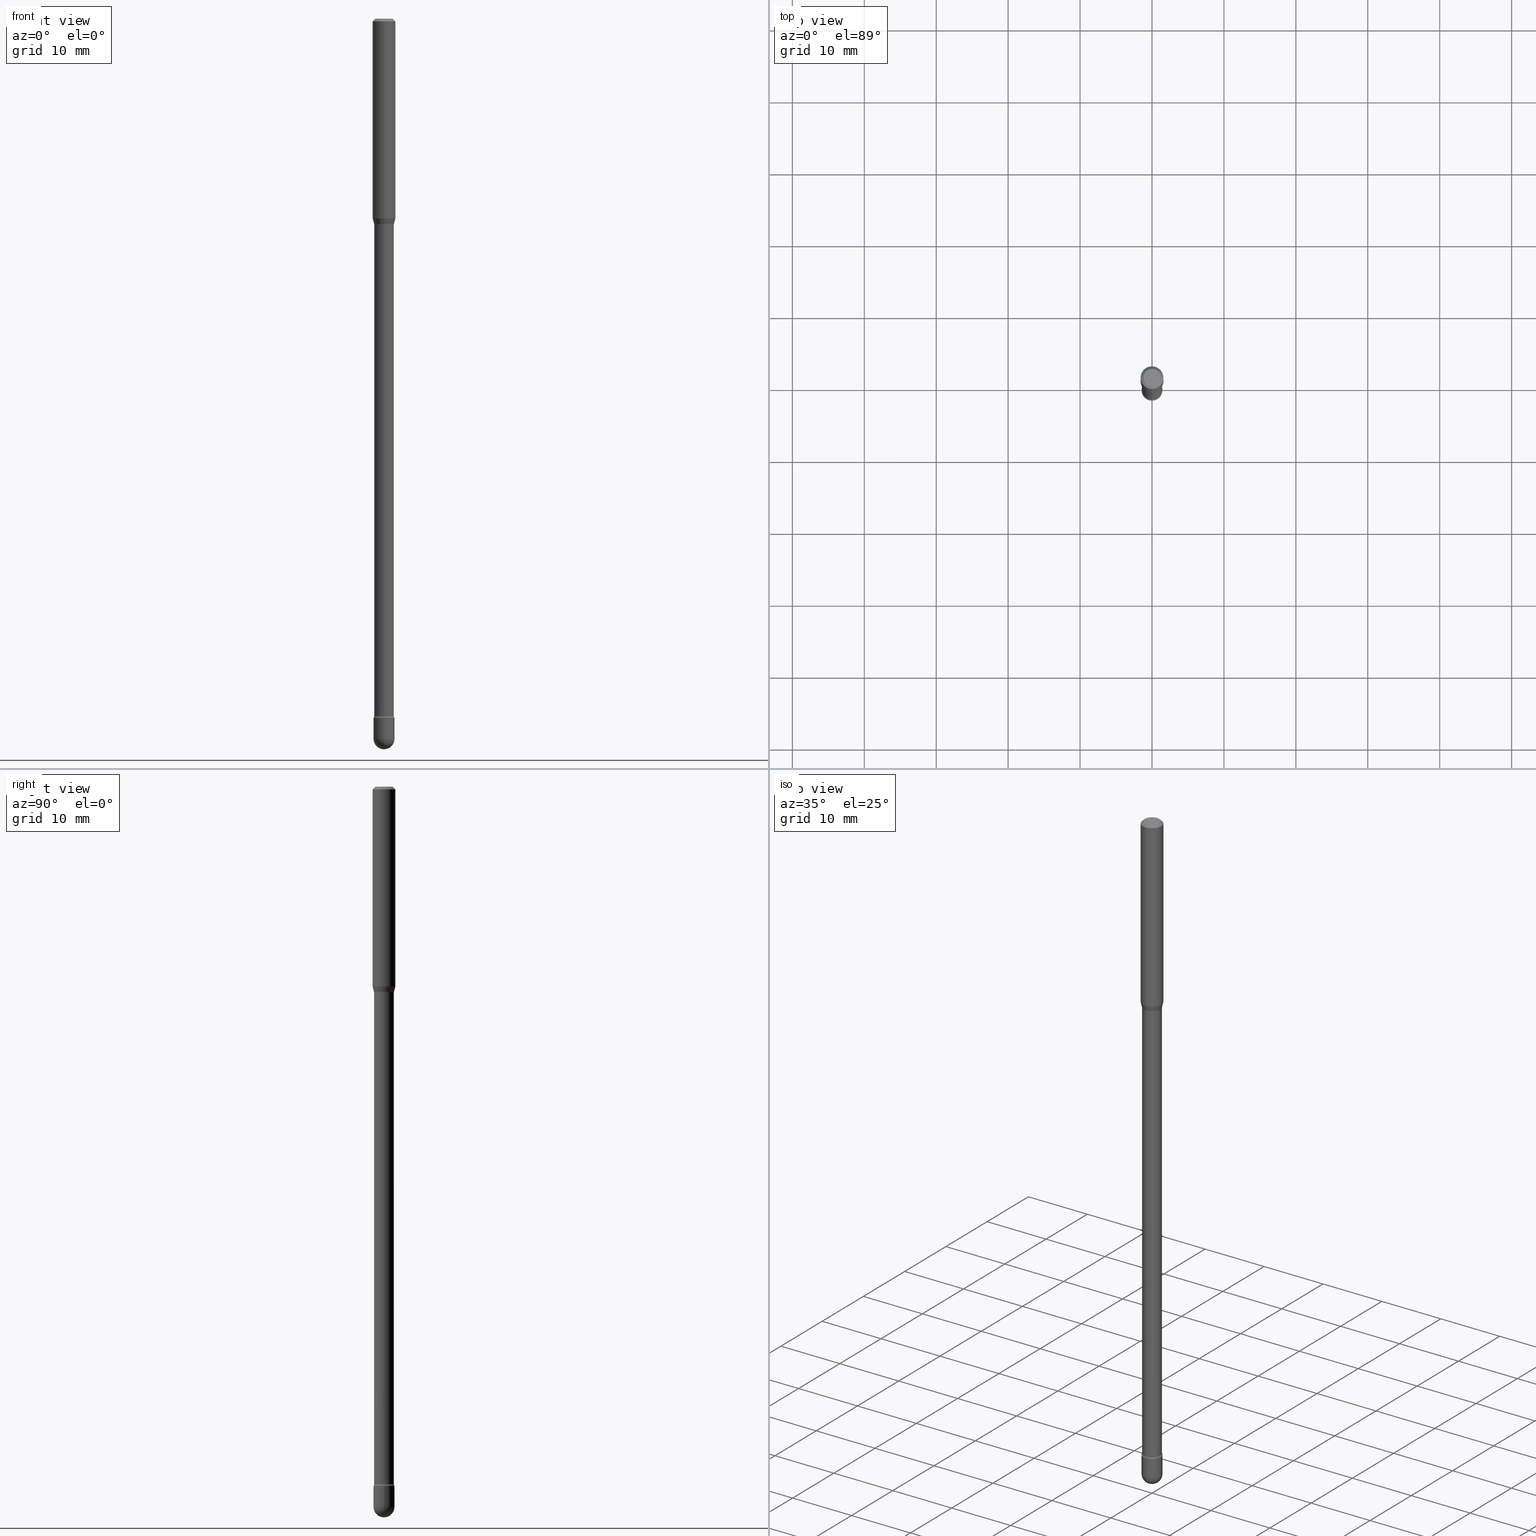
[diagram: canonical four-view strip — front | top / right | iso, engineering-drawing reading convention]
A machine part, canonical four-view strip (front | top / right | iso — engineering-drawing reading convention). The complete STEP part file that produces these views, byte-faithful:
ISO-10303-21;
HEADER;
FILE_DESCRIPTION (( 'STEP AP203' ),
    '1' );
FILE_NAME ('03992.STEP',
    '2024-04-09T21:43:25',
    ( '' ),
    ( '' ),
    'SwSTEP 2.0',
    'SolidWorks 2023',
    '' );
FILE_SCHEMA (( 'CONFIG_CONTROL_DESIGN' ));
ENDSEC;

DATA;
#1 = COORDINATED_UNIVERSAL_TIME_OFFSET ( 5, 0, .BEHIND. ) ;
#2 = CARTESIAN_POINT ( 'NONE',  ( -1.169113584055446105E-44, 1.669184350826100908E-30, 4.780733988912460139E-16 ) ) ;
#3 = CALENDAR_DATE ( 2024, 9, 4 ) ;
#4 = VERTEX_POINT ( 'NONE', #327 ) ;
#5 = DIRECTION ( 'NONE',  ( -2.445471990974716731E-29, 3.491476778043199636E-15, 1.000000000000000000 ) ) ;
#6 = ADVANCED_FACE ( 'NONE', ( #402 ), #531, .T. ) ;
#7 = EDGE_LOOP ( 'NONE', ( #543, #189, #50, #102 ) ) ;
#8 = ORIENTED_EDGE ( 'NONE', *, *, #509, .F. ) ;
#9 = PRODUCT_DEFINITION_FORMATION_WITH_SPECIFIED_SOURCE ( 'ANY', '', #560, .NOT_KNOWN. ) ;
#10 = AXIS2_PLACEMENT_3D ( 'NONE', #525, #424, #82 ) ;
#11 = DIRECTION ( 'NONE',  ( -2.445471990974716731E-29, 3.491476778043199636E-15, 1.000000000000000000 ) ) ;
#12 = CARTESIAN_POINT ( 'NONE',  ( -1.169113584055446105E-44, 1.669184350826100908E-30, 4.780733988912460139E-16 ) ) ;
#13 = VERTEX_POINT ( 'NONE', #51 ) ;
#14 = DATE_AND_TIME ( #3, #68 ) ;
#15 = CARTESIAN_POINT ( 'NONE',  ( 4.085620730621515977E-16, 0.05749999999998670064, -3.826999999999999957 ) ) ;
#16 = APPROVAL ( #116, 'UNSPECIFIED' ) ;
#17 = DIRECTION ( 'NONE',  ( -2.445471990974716731E-29, 3.491476778043199636E-15, 1.000000000000000000 ) ) ;
#18 = FACE_OUTER_BOUND ( 'NONE', #87, .T. ) ;
#19 = DIRECTION ( 'NONE',  ( -2.445471990974716731E-29, 3.491476778043199636E-15, 1.000000000000000000 ) ) ;
#20 = AXIS2_PLACEMENT_3D ( 'NONE', #207, #480, #381 ) ;
#21 = ORIENTED_EDGE ( 'NONE', *, *, #524, .T. ) ;
#22 = CARTESIAN_POINT ( 'NONE',  ( 0.000000000000000000, 0.000000000000000000, 0.000000000000000000 ) ) ;
#23 = CARTESIAN_POINT ( 'NONE',  ( 2.755981688099874044E-29, -3.934811439776616159E-15, -1.126974787463810967 ) ) ;
#24 = CARTESIAN_POINT ( 'NONE',  ( 3.668207986462094994E-31, -5.237215167064828371E-17, -0.01500000000000008271 ) ) ;
#25 = EDGE_CURVE ( 'NONE', #33, #4, #230, .T. ) ;
#26 = DATE_AND_TIME ( #328, #152 ) ;
#27 = AXIS2_PLACEMENT_3D ( 'NONE', #325, #508, #515 ) ;
#28 = AXIS2_PLACEMENT_3D ( 'NONE', #99, #449, #281 ) ;
#29 = CIRCLE ( 'NONE', #346, 0.06250000000000000000 ) ;
#30 = CIRCLE ( 'NONE', #555, 0.05405000000000025062 ) ;
#31 = VECTOR ( 'NONE', #115, 39.37007874015748143 ) ;
#32 = LINE ( 'NONE', #373, #369 ) ;
#33 = VERTEX_POINT ( 'NONE', #455 ) ;
#34 = DIRECTION ( 'NONE',  ( -6.982962677686265922E-15, -1.000000000000000000, 3.491476778043199636E-15 ) ) ;
#35 = CIRCLE ( 'NONE', #511, 0.01499999999999999424 ) ;
#36 = AXIS2_PLACEMENT_3D ( 'NONE', #317, #49, #235 ) ;
#37 = CIRCLE ( 'NONE', #433, 0.06250000000000000000 ) ;
#38 = FACE_OUTER_BOUND ( 'NONE', #523, .T. ) ;
#39 = ORIENTED_EDGE ( 'NONE', *, *, #535, .T. ) ;
#40 = DIRECTION ( 'NONE',  ( -2.445471990974716731E-29, 3.491476778043199636E-15, 1.000000000000000000 ) ) ;
#41 = EDGE_LOOP ( 'NONE', ( #399, #437, #401, #279 ) ) ;
#42 = ORIENTED_EDGE ( 'NONE', *, *, #355, .F. ) ;
#43 = CARTESIAN_POINT ( 'NONE',  ( 9.358821309460242183E-29, -1.336188162957132648E-14, -3.826999999999999957 ) ) ;
#44 = DIRECTION ( 'NONE',  ( -6.982962677686265922E-15, -1.000000000000000000, 0.000000000000000000 ) ) ;
#45 = CARTESIAN_POINT ( 'NONE',  ( 4.906297590423766918E-16, 0.06904999999999607285, -1.126974787463811412 ) ) ;
#46 = EDGE_CURVE ( 'NONE', #172, #216, #562, .T. ) ;
#47 = AXIS2_PLACEMENT_3D ( 'NONE', #490, #234, #494 ) ;
#48 = COORDINATED_UNIVERSAL_TIME_OFFSET ( 5, 0, .BEHIND. ) ;
#49 = DIRECTION ( 'NONE',  ( -2.445471990974716731E-29, 3.491476778043199636E-15, 1.000000000000000000 ) ) ;
#50 = ORIENTED_EDGE ( 'NONE', *, *, #273, .T. ) ;
#51 = CARTESIAN_POINT ( 'NONE',  ( 3.963052108702903812E-16, 0.05404999999998692101, -3.817429341715430358 ) ) ;
#52 = CARTESIAN_POINT ( 'NONE',  ( 3.668207986462094994E-31, -5.237215167064828371E-17, -0.01500000000000008271 ) ) ;
#53 = CARTESIAN_POINT ( 'NONE',  ( 9.641260768384900001E-29, -1.376516517838909916E-14, -3.942499999999999893 ) ) ;
#54 = DIRECTION ( 'NONE',  ( -2.445471990974716450E-29, 3.491476778043199636E-15, 1.000000000000000000 ) ) ;
#55 = AXIS2_PLACEMENT_3D ( 'NONE', #465, #204, #412 ) ;
#56 = DIRECTION ( 'NONE',  ( 0.000000000000000000, 0.000000000000000000, 1.000000000000000000 ) ) ;
#57 = AXIS2_PLACEMENT_3D ( 'NONE', #353, #357, #148 ) ;
#58 = AXIS2_PLACEMENT_3D ( 'NONE', #550, #162, #462 ) ;
#59 = CARTESIAN_POINT ( 'NONE',  ( 9.335416532690136069E-29, -1.332846589842016420E-14, -3.817429341715430358 ) ) ;
#60 = MECHANICAL_CONTEXT ( 'NONE', #496, 'mechanical' ) ;
#61 = DIRECTION ( 'NONE',  ( -6.982962677686265922E-15, -1.000000000000000000, 0.000000000000000000 ) ) ;
#62 = DIRECTION ( 'NONE',  ( 1.000000000000000000, -6.982962677686273810E-15, 0.000000000000000000 ) ) ;
#63 = AXIS2_PLACEMENT_3D ( 'NONE', #481, #227, #34 ) ;
#64 = ADVANCED_FACE ( 'NONE', ( #190 ), #285, .F. ) ;
#65 = CIRCLE ( 'NONE', #297, 0.05750000000000000250 ) ;
#66 = CARTESIAN_POINT ( 'NONE',  ( 0.000000000000000000, 0.000000000000000000, 0.000000000000000000 ) ) ;
#67 = CIRCLE ( 'NONE', #145, 0.06250000000000000000 ) ;
#68 = LOCAL_TIME ( 17, 43, 25.00000000000000000, #48 ) ;
#69 = APPLICATION_PROTOCOL_DEFINITION ( 'international standard', 'config_control_design', 1994, #414 ) ;
#70 = EDGE_LOOP ( 'NONE', ( #169, #258, #83, #519 ) ) ;
#71 = LINE ( 'NONE', #315, #461 ) ;
#72 = DIRECTION ( 'NONE',  ( -2.445471990974716450E-29, 3.491476778043199636E-15, 1.000000000000000000 ) ) ;
#73 = EDGE_LOOP ( 'NONE', ( #324, #443, #356, #426 ) ) ;
#74 = LINE ( 'NONE', #471, #330 ) ;
#75 = ORIENTED_EDGE ( 'NONE', *, *, #505, .F. ) ;
#76 = ADVANCED_FACE ( 'NONE', ( #18 ), #338, .F. ) ;
#77 = CARTESIAN_POINT ( 'NONE',  ( -3.774291327289152172E-16, -0.05405000000000394211, -1.126974787463810745 ) ) ;
#78 = ORIENTED_EDGE ( 'NONE', *, *, #109, .T. ) ;
#79 = ORIENTED_EDGE ( 'NONE', *, *, #505, .T. ) ;
#80 = CARTESIAN_POINT ( 'NONE',  ( 3.876800221694611832E-16, 0.05456111260566007259, -1.123092501787273489 ) ) ;
#81 = TOROIDAL_SURFACE ( 'NONE', #10, 0.06905000000000033333, 0.01500000000000008618 ) ;
#82 = DIRECTION ( 'NONE',  ( -6.982962677686265922E-15, -1.000000000000000000, 3.491476778043199242E-15 ) ) ;
#83 = ORIENTED_EDGE ( 'NONE', *, *, #464, .T. ) ;
#84 = ORIENTED_EDGE ( 'NONE', *, *, #509, .T. ) ;
#85 = CARTESIAN_POINT ( 'NONE',  ( 4.158846160097753596E-16, 0.05456111260566007259, -1.123092501787273489 ) ) ;
#86 = EDGE_CURVE ( 'NONE', #13, #128, #30, .T. ) ;
#87 = EDGE_LOOP ( 'NONE', ( #8, #135, #124, #500 ) ) ;
#88 = ORIENTED_EDGE ( 'NONE', *, *, #212, .F. ) ;
#89 = CYLINDRICAL_SURFACE ( 'NONE', #482, 0.05405000000000013266 ) ;
#90 = EDGE_LOOP ( 'NONE', ( #78, #343, #427, #254 ) ) ;
#91 = DIRECTION ( 'NONE',  ( 1.000000000000000000, -7.105427357601001070E-15, 4.926315452688391616E-29 ) ) ;
#92 = AXIS2_PLACEMENT_3D ( 'NONE', #129, #483, #251 ) ;
#93 = EDGE_LOOP ( 'NONE', ( #542, #302, #123, #522 ) ) ;
#94 = ORIENTED_EDGE ( 'NONE', *, *, #396, .F. ) ;
#95 = DIRECTION ( 'NONE',  ( 1.000000000000000000, -6.982962677686273810E-15, 0.000000000000000000 ) ) ;
#96 = CARTESIAN_POINT ( 'NONE',  ( 9.641260768384900001E-29, -1.376516517838909916E-14, -3.942499999999999893 ) ) ;
#97 = COORDINATED_UNIVERSAL_TIME_OFFSET ( 5, 0, .BEHIND. ) ;
#98 = DIRECTION ( 'NONE',  ( 2.445471990974716731E-29, -3.491476778043199636E-15, -1.000000000000000000 ) ) ;
#99 = CARTESIAN_POINT ( 'NONE',  ( 2.755985277277434029E-29, -3.934806299870066336E-15, -1.126974787463810967 ) ) ;
#100 = DIRECTION ( 'NONE',  ( -7.105427357601000281E-15, -1.000000000000000000, 0.000000000000000000 ) ) ;
#101 = DIRECTION ( 'NONE',  ( -2.445471990974716731E-29, 3.491476778043199636E-15, 1.000000000000000000 ) ) ;
#102 = ORIENTED_EDGE ( 'NONE', *, *, #404, .F. ) ;
#103 = CIRCLE ( 'NONE', #166, 0.05750000000000000250 ) ;
#104 = CLOSED_SHELL ( 'NONE', ( #409, #6, #64, #175, #192, #359, #154, #113, #335, #261, #429, #200, #371, #76 ) ) ;
#105 = CIRCLE ( 'NONE', #419, 0.05750000000000000250 ) ;
#106 = AXIS2_PLACEMENT_3D ( 'NONE', #121, #301, #311 ) ;
#107 = FACE_OUTER_BOUND ( 'NONE', #70, .T. ) ;
#108 = DIRECTION ( 'NONE',  ( 1.839019923739592427E-15, 0.2588190451025238481, 0.9659258262890675351 ) ) ;
#109 = EDGE_CURVE ( 'NONE', #128, #13, #205, .T. ) ;
#110 = DIRECTION ( 'NONE',  ( 1.000000000000000000, -6.982962677686265922E-15, 4.883557194083112340E-29 ) ) ;
#111 = CIRCLE ( 'NONE', #55, 0.06250000000000000000 ) ;
#112 = AXIS2_PLACEMENT_3D ( 'NONE', #336, #368, #516 ) ;
#113 = ADVANCED_FACE ( 'NONE', ( #138 ), #354, .T. ) ;
#114 = PERSON_AND_ORGANIZATION ( #472, #392 ) ;
#115 = DIRECTION ( 'NONE',  ( -2.445468806185136877E-29, 3.491481338843145188E-15, 1.000000000000000000 ) ) ;
#116 = APPROVAL_STATUS ( 'not_yet_approved' ) ;
#117 = EDGE_CURVE ( 'NONE', #128, #492, #539, .T. ) ;
#118 = DIRECTION ( 'NONE',  ( -2.445471990974716731E-29, 3.491476778043199636E-15, 1.000000000000000000 ) ) ;
#119 = DIRECTION ( 'NONE',  ( -6.982962677686265922E-15, -1.000000000000000000, 0.000000000000000000 ) ) ;
#120 = AXIS2_PLACEMENT_3D ( 'NONE', #250, #421, #377 ) ;
#121 = CARTESIAN_POINT ( 'NONE',  ( 9.358809121270517792E-29, -1.336189908375271843E-14, -3.826999999999999957 ) ) ;
#122 = CARTESIAN_POINT ( 'NONE',  ( 3.840483486784283759E-16, 0.05404999999999607341, -1.126974787463810967 ) ) ;
#123 = ORIENTED_EDGE ( 'NONE', *, *, #518, .T. ) ;
#124 = ORIENTED_EDGE ( 'NONE', *, *, #499, .T. ) ;
#125 = EDGE_CURVE ( 'NONE', #352, #165, #552, .T. ) ;
#126 = APPROVAL_ROLE ( '' ) ;
#127 = CARTESIAN_POINT ( 'NONE',  ( 2.674036002522660840E-29, -3.817804759537670479E-15, -1.093464170676043068 ) ) ;
#128 = VERTEX_POINT ( 'NONE', #347 ) ;
#129 = CARTESIAN_POINT ( 'NONE',  ( 9.641260768384900001E-29, -1.376516517838909916E-14, -3.942499999999999893 ) ) ;
#130 = AXIS2_PLACEMENT_3D ( 'NONE', #202, #292, #95 ) ;
#131 = VERTEX_POINT ( 'NONE', #209 ) ;
#132 = VECTOR ( 'NONE', #397, 39.37007874015748143 ) ;
#133 = LINE ( 'NONE', #312, #262 ) ;
#134 = EDGE_CURVE ( 'NONE', #303, #131, #37, .T. ) ;
#135 = ORIENTED_EDGE ( 'NONE', *, *, #318, .F. ) ;
#136 = DIRECTION ( 'NONE',  ( -2.445471990974716731E-29, 3.491476778043199636E-15, 1.000000000000000000 ) ) ;
#137 = EDGE_LOOP ( 'NONE', ( #321, #342 ) ) ;
#138 = FACE_OUTER_BOUND ( 'NONE', #474, .T. ) ;
#139 = ORIENTED_EDGE ( 'NONE', *, *, #415, .T. ) ;
#140 = CYLINDRICAL_SURFACE ( 'NONE', #309, 0.05750000000000000250 ) ;
#141 = DIRECTION ( 'NONE',  ( -1.000000000000000000, 6.982962677686265922E-15, -4.883557194083112340E-29 ) ) ;
#142 = CARTESIAN_POINT ( 'NONE',  ( 2.746491256394498454E-29, -3.921251389584705077E-15, -1.123092501787273267 ) ) ;
#143 = AXIS2_PLACEMENT_3D ( 'NONE', #96, #277, #100 ) ;
#144 = CARTESIAN_POINT ( 'NONE',  ( -3.809982129783618064E-16, -0.05456111260566790661, -1.123092501787273045 ) ) ;
#145 = AXIS2_PLACEMENT_3D ( 'NONE', #255, #5, #423 ) ;
#146 = LINE ( 'NONE', #80, #195 ) ;
#147 = FACE_OUTER_BOUND ( 'NONE', #238, .T. ) ;
#148 = DIRECTION ( 'NONE',  ( -6.982962677686266711E-15, -1.000000000000000000, 3.491476778043200031E-15 ) ) ;
#149 = EDGE_CURVE ( 'NONE', #13, #385, #393, .T. ) ;
#150 = CARTESIAN_POINT ( 'NONE',  ( 2.746491256394498454E-29, -3.921251389584705077E-15, -1.123092501787273267 ) ) ;
#151 = ORIENTED_EDGE ( 'NONE', *, *, #355, .T. ) ;
#152 = LOCAL_TIME ( 17, 43, 25.00000000000000000, #97 ) ;
#153 = VECTOR ( 'NONE', #450, 39.37007874015748143 ) ;
#154 = ADVANCED_FACE ( 'NONE', ( #387 ), #339, .T. ) ;
#155 = PERSON_AND_ORGANIZATION ( #472, #392 ) ;
#156 = CARTESIAN_POINT ( 'NONE',  ( 9.641260768384900001E-29, -1.376516517838909916E-14, -3.942499999999999893 ) ) ;
#157 =( CONVERSION_BASED_UNIT ( 'INCH', #289 ) LENGTH_UNIT ( ) NAMED_UNIT ( #407 ) );
#158 = CIRCLE ( 'NONE', #143, 0.05750000000000007189 ) ;
#159 = AXIS2_PLACEMENT_3D ( 'NONE', #24, #98, #362 ) ;
#160 = CARTESIAN_POINT ( 'NONE',  ( 4.015203539670569516E-16, 0.05749999999998627043, -3.942499999999999893 ) ) ;
#161 = CC_DESIGN_DATE_AND_TIME_ASSIGNMENT ( #14, #485, ( #286 ) ) ;
#162 = DIRECTION ( 'NONE',  ( -2.445471990974716731E-29, 3.491476778043199636E-15, 1.000000000000000000 ) ) ;
#163 = PERSON_AND_ORGANIZATION_ROLE ( 'classification_officer' ) ;
#164 = DIRECTION ( 'NONE',  ( 1.000000000000000000, -6.982962677686265922E-15, 4.876176775795935232E-29 ) ) ;
#165 = VERTEX_POINT ( 'NONE', #305 ) ;
#166 = AXIS2_PLACEMENT_3D ( 'NONE', #53, #400, #62 ) ;
#167 = CARTESIAN_POINT ( 'NONE',  ( 2.746491256394498454E-29, -3.921251389584705077E-15, -1.123092501787273267 ) ) ;
#168 = ADVANCED_FACE ( 'NONE', ( #38 ), #477, .T. ) ;
#169 = ORIENTED_EDGE ( 'NONE', *, *, #458, .F. ) ;
#170 = DATE_AND_TIME ( #184, #290 ) ;
#171 = PRODUCT_DEFINITION_SHAPE ( 'NONE', 'NONE',  #286 ) ;
#172 = VERTEX_POINT ( 'NONE', #77 ) ;
#173 = ORIENTED_EDGE ( 'NONE', *, *, #436, .F. ) ;
#174 = CARTESIAN_POINT ( 'NONE',  ( 9.358809121270517792E-29, -1.336189908375271843E-14, -3.826999999999999957 ) ) ;
#175 = ADVANCED_FACE ( 'NONE', ( #260 ), #512, .T. ) ;
#176 = DIRECTION ( 'NONE',  ( -1.000000000000000000, 6.982962677686266711E-15, -4.883557194083112901E-29 ) ) ;
#177 = APPROVAL_DATE_TIME ( #170, #548 ) ;
#178 = DIRECTION ( 'NONE',  ( -2.445471990974716731E-29, 3.491476778043199636E-15, 1.000000000000000000 ) ) ;
#179 = LOCAL_TIME ( 17, 43, 25.00000000000000000, #521 ) ;
#180 = AXIS2_PLACEMENT_3D ( 'NONE', #489, #439, #44 ) ;
#181 = VERTEX_POINT ( 'NONE', #220 ) ;
#182 = AXIS2_PLACEMENT_3D ( 'NONE', #536, #141, #276 ) ;
#183 = DIRECTION ( 'NONE',  ( -1.000000000000000000, 6.982962677686265922E-15, -4.883557194083112340E-29 ) ) ;
#184 = CALENDAR_DATE ( 2024, 9, 4 ) ;
#185 =( NAMED_UNIT ( * ) SI_UNIT ( $, .STERADIAN. ) SOLID_ANGLE_UNIT ( ) );
#186 = CC_DESIGN_PERSON_AND_ORGANIZATION_ASSIGNMENT ( #191, #413, ( #9 ) ) ;
#187 = DIRECTION ( 'NONE',  ( -6.982962677686265922E-15, -1.000000000000000000, 2.503475335454092652E-15 ) ) ;
#188 = ORIENTED_EDGE ( 'NONE', *, *, #499, .F. ) ;
#189 = ORIENTED_EDGE ( 'NONE', *, *, #86, .T. ) ;
#190 = FACE_OUTER_BOUND ( 'NONE', #41, .T. ) ;
#191 = PERSON_AND_ORGANIZATION ( #472, #392 ) ;
#192 = ADVANCED_FACE ( 'NONE', ( #337 ), #384, .T. ) ;
#193 = EDGE_LOOP ( 'NONE', ( #479, #84, #269, #188 ) ) ;
#194 = APPROVAL_PERSON_ORGANIZATION ( #408, #430, #546 ) ;
#195 = VECTOR ( 'NONE', #108, 39.37007874015748854 ) ;
#196 = DIRECTION ( 'NONE',  ( -2.445471990974716731E-29, 3.491476778043199636E-15, 1.000000000000000000 ) ) ;
#197 = DIRECTION ( 'NONE',  ( 1.000000000000000000, 0.000000000000000000, 0.000000000000000000 ) ) ;
#198 = EDGE_CURVE ( 'NONE', #385, #492, #105, .T. ) ;
#199 = CIRCLE ( 'NONE', #506, 0.05456111260566398613 ) ;
#200 = ADVANCED_FACE ( 'NONE', ( #307 ), #81, .F. ) ;
#201 = SECURITY_CLASSIFICATION_LEVEL ( 'unclassified' ) ;
#202 = CARTESIAN_POINT ( 'NONE',  ( 9.358809121270517792E-29, -1.336189908375271843E-14, -3.826999999999999957 ) ) ;
#203 = PLANE ( 'NONE',  #549 ) ;
#204 = DIRECTION ( 'NONE',  ( -2.445471990974716731E-29, 3.491476778043199636E-15, 1.000000000000000000 ) ) ;
#205 = CIRCLE ( 'NONE', #180, 0.05405000000000025062 ) ;
#206 = CIRCLE ( 'NONE', #106, 0.05750000000000000250 ) ;
#207 = CARTESIAN_POINT ( 'NONE',  ( 2.746491256394498454E-29, -3.921251389584705077E-15, -1.123092501787273267 ) ) ;
#208 =( LENGTH_UNIT ( ) NAMED_UNIT ( * ) SI_UNIT ( $, .METRE. ) );
#209 = CARTESIAN_POINT ( 'NONE',  ( 4.440892098500891416E-16, 0.06249999999999616279, -1.093464170676043512 ) ) ;
#210 = EDGE_LOOP ( 'NONE', ( #211, #349, #422, #561 ) ) ;
#211 = ORIENTED_EDGE ( 'NONE', *, *, #134, .T. ) ;
#212 = EDGE_CURVE ( 'NONE', #502, #181, #358, .T. ) ;
#213 = CARTESIAN_POINT ( 'NONE',  ( -4.821735728942091291E-16, -0.06905000000000394156, -1.126974787463810745 ) ) ;
#214 = APPROVAL_PERSON_ORGANIZATION ( #370, #16, #425 ) ;
#215 = AXIS2_PLACEMENT_3D ( 'NONE', #23, #136, #497 ) ;
#216 = VERTEX_POINT ( 'NONE', #122 ) ;
#217 = AXIS2_PLACEMENT_3D ( 'NONE', #174, #428, #267 ) ;
#218 = ORIENTED_EDGE ( 'NONE', *, *, #529, .F. ) ;
#219 = DIRECTION ( 'NONE',  ( 4.937700262164548042E-15, 0.7071067811865451302, -0.7071067811865499042 ) ) ;
#220 = CARTESIAN_POINT ( 'NONE',  ( -4.085620730619614329E-16, -0.05750000000001379702, -3.942499999999999893 ) ) ;
#221 = EDGE_CURVE ( 'NONE', #303, #306, #32, .T. ) ;
#222 = VERTEX_POINT ( 'NONE', #256 ) ;
#223 = DIRECTION ( 'NONE',  ( -4.851104656540964275E-15, -0.7071067811865500152, -0.7071067811865450192 ) ) ;
#224 = CARTESIAN_POINT ( 'NONE',  ( 3.668207986462094994E-31, -5.237215167064828371E-17, -0.01500000000000008271 ) ) ;
#225 = ORIENTED_EDGE ( 'NONE', *, *, #367, .F. ) ;
#226 = ORIENTED_EDGE ( 'NONE', *, *, #458, .T. ) ;
#227 = DIRECTION ( 'NONE',  ( -2.445471990974716450E-29, 3.491476778043199636E-15, 1.000000000000000000 ) ) ;
#228 = SPHERICAL_SURFACE ( 'NONE', #47, 0.05750000000000007189 ) ;
#229 = EDGE_CURVE ( 'NONE', #294, #131, #146, .T. ) ;
#230 = CIRCLE ( 'NONE', #57, 0.04749999999999999362 ) ;
#231 = DIRECTION ( 'NONE',  ( -2.445471990974716731E-29, 3.491476778043199636E-15, 1.000000000000000000 ) ) ;
#232 = CIRCLE ( 'NONE', #365, 0.05750000000000000250 ) ;
#233 = DIRECTION ( 'NONE',  ( 7.105427357601001859E-15, 1.000000000000000000, 0.000000000000000000 ) ) ;
#234 = DIRECTION ( 'NONE',  ( -1.000000000000000000, 6.982962677686266711E-15, -4.883557194083112901E-29 ) ) ;
#235 = DIRECTION ( 'NONE',  ( -6.982962677686265922E-15, -1.000000000000000000, 3.491476778043198453E-15 ) ) ;
#236 = ORIENTED_EDGE ( 'NONE', *, *, #25, .T. ) ;
#237 = CC_DESIGN_PERSON_AND_ORGANIZATION_ASSIGNMENT ( #114, #163, ( #240 ) ) ;
#238 = EDGE_LOOP ( 'NONE', ( #284, #484, #374, #340 ) ) ;
#239 = PERSON_AND_ORGANIZATION ( #472, #392 ) ;
#240 = SECURITY_CLASSIFICATION ( '', '', #201 ) ;
#241 = VERTEX_POINT ( 'NONE', #249 ) ;
#242 = CLOSED_SHELL ( 'NONE', ( #391, #296, #470, #265, #168 ) ) ;
#243 = VECTOR ( 'NONE', #54, 39.37007874015748143 ) ;
#244 = FACE_OUTER_BOUND ( 'NONE', #193, .T. ) ;
#245 = AXIS2_PLACEMENT_3D ( 'NONE', #213, #183, #350 ) ;
#246 = DIRECTION ( 'NONE',  ( 1.000000000000000000, -6.982962677686273810E-15, 0.000000000000000000 ) ) ;
#247 = AXIS2_PLACEMENT_3D ( 'NONE', #448, #110, #287 ) ;
#248 = PERSON_AND_ORGANIZATION_ROLE ( 'creator' ) ;
#249 = CARTESIAN_POINT ( 'NONE',  ( -3.809982129783618064E-16, -0.05456111260566790661, -1.123092501787273045 ) ) ;
#250 = CARTESIAN_POINT ( 'NONE',  ( 4.906297590424448296E-16, 0.06904999999998701066, -3.817429341715430358 ) ) ;
#251 = DIRECTION ( 'NONE',  ( 1.000000000000000000, -6.982962677686273810E-15, 0.000000000000000000 ) ) ;
#252 = ORIENTED_EDGE ( 'NONE', *, *, #415, .F. ) ;
#253 = DIRECTION ( 'NONE',  ( -6.982962677686265922E-15, -1.000000000000000000, 2.503475335454092652E-15 ) ) ;
#254 = ORIENTED_EDGE ( 'NONE', *, *, #273, .F. ) ;
#255 = CARTESIAN_POINT ( 'NONE',  ( 3.668207986462094994E-31, -5.237215167064828371E-17, -0.01500000000000008271 ) ) ;
#256 = CARTESIAN_POINT ( 'NONE',  ( -0.05750000000000000250, -1.315497005800885122E-14, -3.826999999999999957 ) ) ;
#257 = VERTEX_POINT ( 'NONE', #160 ) ;
#258 = ORIENTED_EDGE ( 'NONE', *, *, #25, .F. ) ;
#259 = APPLICATION_PROTOCOL_DEFINITION ( 'international standard', 'config_control_design', 1994, #496 ) ;
#260 = FACE_OUTER_BOUND ( 'NONE', #263, .T. ) ;
#261 = ADVANCED_FACE ( 'NONE', ( #416 ), #203, .F. ) ;
#262 = VECTOR ( 'NONE', #487, 39.37007874015748143 ) ;
#263 = EDGE_LOOP ( 'NONE', ( #466, #226, #530, #486 ) ) ;
#264 = FACE_OUTER_BOUND ( 'NONE', #493, .T. ) ;
#265 = ADVANCED_FACE ( 'NONE', ( #264 ), #533, .T. ) ;
#266 = UNCERTAINTY_MEASURE_WITH_UNIT (LENGTH_MEASURE( 1.000000000000000082E-05 ), #157, 'distance_accuracy_value', 'NONE');
#267 = DIRECTION ( 'NONE',  ( 1.000000000000000000, -6.982962677686265922E-15, 4.876176775795935793E-29 ) ) ;
#268 = FACE_OUTER_BOUND ( 'NONE', #534, .T. ) ;
#269 = ORIENTED_EDGE ( 'NONE', *, *, #404, .T. ) ;
#270 = DIRECTION ( 'NONE',  ( -6.982962677686265922E-15, -1.000000000000000000, 3.491476778043199242E-15 ) ) ;
#271 = DIRECTION ( 'NONE',  ( -6.982962677686265922E-15, -1.000000000000000000, 3.491476778043199242E-15 ) ) ;
#272 = LINE ( 'NONE', #144, #526 ) ;
#273 = EDGE_CURVE ( 'NONE', #128, #172, #133, .T. ) ;
#274 = DIRECTION ( 'NONE',  ( 1.000000000000000000, -6.982962677686265922E-15, 4.876176775795935232E-29 ) ) ;
#275 = MANIFOLD_SOLID_BREP ( 'Body-Move/Copy2[1]', #242 ) ;
#276 = DIRECTION ( 'NONE',  ( -6.982962677686267499E-15, -1.000000000000000000, 0.000000000000000000 ) ) ;
#277 = DIRECTION ( 'NONE',  ( -1.000000000000000000, 7.105427357601001070E-15, -4.926315508542082329E-29 ) ) ;
#278 = MANIFOLD_SOLID_BREP ( 'Body-Move/Copy2[2]', #104 ) ;
#279 = ORIENTED_EDGE ( 'NONE', *, *, #117, .F. ) ;
#280 = CARTESIAN_POINT ( 'NONE',  ( -0.05750000000000000250, 4.085620730620576246E-16, -2.828387676896570712E-30 ) ) ;
#281 = DIRECTION ( 'NONE',  ( -6.982962677686265922E-15, -1.000000000000000000, 2.527148930309216366E-15 ) ) ;
#282 = CARTESIAN_POINT ( 'NONE',  ( 4.440892098500893388E-16, 0.06249999999999993755, -0.01500000000000030129 ) ) ;
#283 = AXIS2_PLACEMENT_3D ( 'NONE', #383, #56, #197 ) ;
#284 = ORIENTED_EDGE ( 'NONE', *, *, #318, .T. ) ;
#285 = TOROIDAL_SURFACE ( 'NONE', #504, 0.06905000000000033333, 0.01500000000000008618 ) ;
#286 = PRODUCT_DEFINITION ( 'UNKNOWN', '', #9, #314 ) ;
#287 = DIRECTION ( 'NONE',  ( 6.982962677686265922E-15, 1.000000000000000000, 0.000000000000000000 ) ) ;
#288 = APPROVAL_STATUS ( 'not_yet_approved' ) ;
#289 = LENGTH_MEASURE_WITH_UNIT ( LENGTH_MEASURE( 0.02539999999999999897 ), #208 );
#290 = LOCAL_TIME ( 17, 43, 25.00000000000000000, #1 ) ;
#291 = CIRCLE ( 'NONE', #245, 0.01499999999999999424 ) ;
#292 = DIRECTION ( 'NONE',  ( -2.445468806185136597E-29, 3.491481338843145583E-15, 1.000000000000000000 ) ) ;
#293 = CC_DESIGN_DATE_AND_TIME_ASSIGNMENT ( #295, #435, ( #240 ) ) ;
#294 = VERTEX_POINT ( 'NONE', #85 ) ;
#295 = DATE_AND_TIME ( #417, #507 ) ;
#296 = ADVANCED_FACE ( 'NONE', ( #268 ), #228, .T. ) ;
#297 = AXIS2_PLACEMENT_3D ( 'NONE', #564, #476, #382 ) ;
#298 = AXIS2_PLACEMENT_3D ( 'NONE', #2, #178, #517 ) ;
#299 = CARTESIAN_POINT ( 'NONE',  ( 9.358821309460242183E-29, -1.336188162957132648E-14, -3.826999999999999957 ) ) ;
#300 = EDGE_CURVE ( 'NONE', #492, #385, #232, .T. ) ;
#301 = DIRECTION ( 'NONE',  ( -2.445468806185136597E-29, 3.491481338843145583E-15, 1.000000000000000000 ) ) ;
#302 = ORIENTED_EDGE ( 'NONE', *, *, #332, .T. ) ;
#303 = VERTEX_POINT ( 'NONE', #513 ) ;
#304 = FACE_OUTER_BOUND ( 'NONE', #137, .T. ) ;
#305 = CARTESIAN_POINT ( 'NONE',  ( 0.05750000000000000250, -1.376341943771968003E-14, -3.826999999999999957 ) ) ;
#306 = VERTEX_POINT ( 'NONE', #334 ) ;
#307 = FACE_OUTER_BOUND ( 'NONE', #73, .T. ) ;
#308 = AXIS2_PLACEMENT_3D ( 'NONE', #12, #17, #271 ) ;
#309 = AXIS2_PLACEMENT_3D ( 'NONE', #22, #329, #274 ) ;
#310 = ORIENTED_EDGE ( 'NONE', *, *, #198, .F. ) ;
#311 = DIRECTION ( 'NONE',  ( 1.000000000000000000, -6.982962677686273810E-15, 0.000000000000000000 ) ) ;
#312 = CARTESIAN_POINT ( 'NONE',  ( -3.774291327289436162E-16, -0.05405000000000013266, 6.667877187444814746E-16 ) ) ;
#313 = DIRECTION ( 'NONE',  ( -2.445471990974716731E-29, 3.491476778043199636E-15, 1.000000000000000000 ) ) ;
#314 = DESIGN_CONTEXT ( 'detailed design', #414, 'design' ) ;
#315 = CARTESIAN_POINT ( 'NONE',  ( 4.364351673553919652E-16, 0.06249999999999995143, -0.01500000000000030129 ) ) ;
#316 = CARTESIAN_POINT ( 'NONE',  ( -1.169113584055446105E-44, 1.669184350826100908E-30, 4.780733988912460139E-16 ) ) ;
#317 = CARTESIAN_POINT ( 'NONE',  ( -1.169113584055446105E-44, 1.669184350826100908E-30, 4.780733988912460139E-16 ) ) ;
#318 = EDGE_CURVE ( 'NONE', #241, #294, #442, .T. ) ;
#319 = ORIENTED_EDGE ( 'NONE', *, *, #125, .F. ) ;
#320 = LINE ( 'NONE', #445, #243 ) ;
#321 = ORIENTED_EDGE ( 'NONE', *, *, #537, .T. ) ;
#322 = AXIS2_PLACEMENT_3D ( 'NONE', #156, #510, #246 ) ;
#323 = EDGE_LOOP ( 'NONE', ( #236, #398 ) ) ;
#324 = ORIENTED_EDGE ( 'NONE', *, *, #149, .F. ) ;
#325 = CARTESIAN_POINT ( 'NONE',  ( 2.023576016125851639E-45, -2.889079169192022076E-31, -8.274724870954284047E-17 ) ) ;
#326 = FACE_OUTER_BOUND ( 'NONE', #7, .T. ) ;
#327 = CARTESIAN_POINT ( 'NONE',  ( -3.773273898774340269E-16, -0.04749999999999999362, 8.309789824750911808E-17 ) ) ;
#328 = CALENDAR_DATE ( 2024, 9, 4 ) ;
#329 = DIRECTION ( 'NONE',  ( -2.445468806185136597E-29, 3.491481338843145583E-15, 1.000000000000000000 ) ) ;
#330 = VECTOR ( 'NONE', #223, 39.37007874015748143 ) ;
#331 = DIRECTION ( 'NONE',  ( -2.445471990974716731E-29, 3.491476778043199636E-15, 1.000000000000000000 ) ) ;
#332 = EDGE_CURVE ( 'NONE', #294, #241, #199, .T. ) ;
#333 = DIRECTION ( 'NONE',  ( 2.445471990974716450E-29, -3.491476778043199636E-15, -1.000000000000000000 ) ) ;
#334 = CARTESIAN_POINT ( 'NONE',  ( -4.364351673553912750E-16, -0.06250000000000005551, -0.01499999999999986587 ) ) ;
#335 = ADVANCED_FACE ( 'NONE', ( #107 ), #411, .T. ) ;
#336 = CARTESIAN_POINT ( 'NONE',  ( 2.755981688099874044E-29, -3.934811439776616159E-15, -1.126974787463810967 ) ) ;
#337 = FACE_OUTER_BOUND ( 'NONE', #210, .T. ) ;
#338 = TOROIDAL_SURFACE ( 'NONE', #215, 0.06905000000000000027, 0.01499999999999998904 ) ;
#339 = CONICAL_SURFACE ( 'NONE', #420, 0.05456111260566398613, 0.2617993877991491303 ) ;
#340 = ORIENTED_EDGE ( 'NONE', *, *, #518, .F. ) ;
#341 = SHAPE_DEFINITION_REPRESENTATION ( #171, #366 ) ;
#342 = ORIENTED_EDGE ( 'NONE', *, *, #436, .T. ) ;
#343 = ORIENTED_EDGE ( 'NONE', *, *, #379, .T. ) ;
#344 = CC_DESIGN_PERSON_AND_ORGANIZATION_ASSIGNMENT ( #454, #405, ( #560 ) ) ;
#345 = DIRECTION ( 'NONE',  ( -2.445471990974716731E-29, 3.491476778043199636E-15, 1.000000000000000000 ) ) ;
#346 = AXIS2_PLACEMENT_3D ( 'NONE', #52, #19, #360 ) ;
#347 = CARTESIAN_POINT ( 'NONE',  ( -3.774291327288510236E-16, -0.05405000000001357330, -3.817429341715430358 ) ) ;
#348 = TOROIDAL_SURFACE ( 'NONE', #112, 0.06905000000000000027, 0.01499999999999998904 ) ;
#349 = ORIENTED_EDGE ( 'NONE', *, *, #367, .T. ) ;
#350 = DIRECTION ( 'NONE',  ( -6.982962677686266711E-15, -1.000000000000000000, 0.000000000000000000 ) ) ;
#351 = DIRECTION ( 'NONE',  ( 6.982962677686265922E-15, 1.000000000000000000, -3.491476778043199636E-15 ) ) ;
#352 = VERTEX_POINT ( 'NONE', #364 ) ;
#353 = CARTESIAN_POINT ( 'NONE',  ( 2.023576016125851639E-45, -2.889079169192022076E-31, -8.274724870954284047E-17 ) ) ;
#354 = CYLINDRICAL_SURFACE ( 'NONE', #36, 0.06250000000000000000 ) ;
#355 = EDGE_CURVE ( 'NONE', #502, #222, #541, .T. ) ;
#356 = ORIENTED_EDGE ( 'NONE', *, *, #117, .T. ) ;
#357 = DIRECTION ( 'NONE',  ( -2.445471990974716731E-29, 3.491476778043199636E-15, 1.000000000000000000 ) ) ;
#358 = CIRCLE ( 'NONE', #92, 0.05750000000000000250 ) ;
#359 = ADVANCED_FACE ( 'NONE', ( #147 ), #376, .T. ) ;
#360 = DIRECTION ( 'NONE',  ( -6.982962677686265922E-15, -1.000000000000000000, 3.483106191921935554E-15 ) ) ;
#361 = ORIENTED_EDGE ( 'NONE', *, *, #545, .F. ) ;
#362 = DIRECTION ( 'NONE',  ( 6.982962677686265922E-15, 1.000000000000000000, -3.483106191921935554E-15 ) ) ;
#363 = VERTEX_POINT ( 'NONE', #282 ) ;
#364 = CARTESIAN_POINT ( 'NONE',  ( 0.05750000000000000250, -1.396505248503787118E-14, -3.942499999999999893 ) ) ;
#365 = AXIS2_PLACEMENT_3D ( 'NONE', #43, #118, #61 ) ;
#366 = ADVANCED_BREP_SHAPE_REPRESENTATION ( '03992', ( #275, #278, #283 ), #460 ) ;
#367 = EDGE_CURVE ( 'NONE', #131, #363, #501, .T. ) ;
#368 = DIRECTION ( 'NONE',  ( -2.445471990974716731E-29, 3.491476778043199636E-15, 1.000000000000000000 ) ) ;
#369 = VECTOR ( 'NONE', #72, 39.37007874015748143 ) ;
#370 = PERSON_AND_ORGANIZATION ( #472, #392 ) ;
#371 = ADVANCED_FACE ( 'NONE', ( #326 ), #89, .T. ) ;
#372 = EDGE_LOOP ( 'NONE', ( #395, #310 ) ) ;
#373 = CARTESIAN_POINT ( 'NONE',  ( -4.364351673553916201E-16, -0.06250000000000000000, 6.962906975189459665E-16 ) ) ;
#374 = ORIENTED_EDGE ( 'NONE', *, *, #134, .F. ) ;
#375 = CIRCLE ( 'NONE', #130, 0.05750000000000000250 ) ;
#376 = CONICAL_SURFACE ( 'NONE', #403, 0.05456111260566398613, 0.2617993877991491303 ) ;
#377 = DIRECTION ( 'NONE',  ( 7.105427357600997914E-15, 1.000000000000000000, 0.000000000000000000 ) ) ;
#378 = ORIENTED_EDGE ( 'NONE', *, *, #125, .T. ) ;
#379 = EDGE_CURVE ( 'NONE', #13, #216, #320, .T. ) ;
#380 = CC_DESIGN_PERSON_AND_ORGANIZATION_ASSIGNMENT ( #239, #444, ( #286 ) ) ;
#381 = DIRECTION ( 'NONE',  ( -6.982962677686265922E-15, -1.000000000000000000, 2.503475335454092652E-15 ) ) ;
#382 = DIRECTION ( 'NONE',  ( 1.000000000000000000, -6.982962677686273810E-15, 0.000000000000000000 ) ) ;
#383 = CARTESIAN_POINT ( 'NONE',  ( 0.000000000000000000, 0.000000000000000000, 0.000000000000000000 ) ) ;
#384 = CYLINDRICAL_SURFACE ( 'NONE', #298, 0.06250000000000000000 ) ;
#385 = VERTEX_POINT ( 'NONE', #15 ) ;
#386 = PLANE ( 'NONE',  #217 ) ;
#387 = FACE_OUTER_BOUND ( 'NONE', #93, .T. ) ;
#388 = ORIENTED_EDGE ( 'NONE', *, *, #537, .F. ) ;
#389 = DIRECTION ( 'NONE',  ( -6.982962677686265922E-15, -1.000000000000000000, 0.000000000000000000 ) ) ;
#390 = CARTESIAN_POINT ( 'NONE',  ( -4.015203539668670826E-16, -0.05750000000001342232, -3.826999999999999957 ) ) ;
#391 = ADVANCED_FACE ( 'NONE', ( #453 ), #140, .T. ) ;
#392 = ORGANIZATION ( 'UNSPECIFIED', 'UNSPECIFIED', '' ) ;
#393 = CIRCLE ( 'NONE', #120, 0.01500000000000008792 ) ;
#394 = CC_DESIGN_APPROVAL ( #16, ( #286 ) ) ;
#395 = ORIENTED_EDGE ( 'NONE', *, *, #300, .F. ) ;
#396 = EDGE_CURVE ( 'NONE', #478, #257, #528, .T. ) ;
#397 = DIRECTION ( 'NONE',  ( -2.445471990974716450E-29, 3.491476778043199636E-15, 1.000000000000000000 ) ) ;
#398 = ORIENTED_EDGE ( 'NONE', *, *, #566, .T. ) ;
#399 = ORIENTED_EDGE ( 'NONE', *, *, #86, .F. ) ;
#400 = DIRECTION ( 'NONE',  ( -2.445468806185136597E-29, 3.491481338843145583E-15, 1.000000000000000000 ) ) ;
#401 = ORIENTED_EDGE ( 'NONE', *, *, #198, .T. ) ;
#402 = FACE_OUTER_BOUND ( 'NONE', #90, .T. ) ;
#403 = AXIS2_PLACEMENT_3D ( 'NONE', #150, #11, #187 ) ;
#404 = EDGE_CURVE ( 'NONE', #216, #172, #456, .T. ) ;
#405 = PERSON_AND_ORGANIZATION_ROLE ( 'design_owner' ) ;
#406 = APPROVAL_DATE_TIME ( #457, #16 ) ;
#407 = DIMENSIONAL_EXPONENTS ( 1.000000000000000000, 0.000000000000000000, 0.000000000000000000, 0.000000000000000000, 0.000000000000000000, 0.000000000000000000, 0.000000000000000000 ) ;
#408 = PERSON_AND_ORGANIZATION ( #472, #392 ) ;
#409 = ADVANCED_FACE ( 'NONE', ( #244 ), #348, .F. ) ;
#410 = CC_DESIGN_APPROVAL ( #548, ( #240 ) ) ;
#411 = CONICAL_SURFACE ( 'NONE', #159, 0.06250000000000000000, 0.7853981633974483900 ) ;
#412 = DIRECTION ( 'NONE',  ( -6.982962677686265922E-15, -1.000000000000000000, 4.370956789862821150E-15 ) ) ;
#413 = PERSON_AND_ORGANIZATION_ROLE ( 'design_supplier' ) ;
#414 = APPLICATION_CONTEXT ( 'configuration controlled 3d designs of mechanical parts and assemblies' ) ;
#415 = EDGE_CURVE ( 'NONE', #181, #352, #563, .T. ) ;
#416 = FACE_OUTER_BOUND ( 'NONE', #323, .T. ) ;
#417 = CALENDAR_DATE ( 2024, 9, 4 ) ;
#418 = CIRCLE ( 'NONE', #27, 0.04749999999999999362 ) ;
#419 = AXIS2_PLACEMENT_3D ( 'NONE', #299, #345, #119 ) ;
#420 = AXIS2_PLACEMENT_3D ( 'NONE', #167, #313, #559 ) ;
#421 = DIRECTION ( 'NONE',  ( 1.000000000000000000, -7.105427357601001070E-15, 4.926315452688391616E-29 ) ) ;
#422 = ORIENTED_EDGE ( 'NONE', *, *, #463, .F. ) ;
#423 = DIRECTION ( 'NONE',  ( -6.982962677686265922E-15, -1.000000000000000000, 3.483106191921935554E-15 ) ) ;
#424 = DIRECTION ( 'NONE',  ( -2.445471990974716731E-29, 3.491476778043199636E-15, 1.000000000000000000 ) ) ;
#425 = APPROVAL_ROLE ( '' ) ;
#426 = ORIENTED_EDGE ( 'NONE', *, *, #300, .T. ) ;
#427 = ORIENTED_EDGE ( 'NONE', *, *, #46, .F. ) ;
#428 = DIRECTION ( 'NONE',  ( -2.438088387897960049E-29, 3.491481338843145188E-15, 1.000000000000000000 ) ) ;
#429 = ADVANCED_FACE ( 'NONE', ( #459 ), #553, .F. ) ;
#430 = APPROVAL ( #288, 'UNSPECIFIED' ) ;
#431 = ORIENTED_EDGE ( 'NONE', *, *, #221, .T. ) ;
#432 = CARTESIAN_POINT ( 'NONE',  ( 9.641260768384900001E-29, -1.376516517838909916E-14, -3.942499999999999893 ) ) ;
#433 = AXIS2_PLACEMENT_3D ( 'NONE', #127, #40, #520 ) ;
#434 = DIRECTION ( 'NONE',  ( 2.445471990974716731E-29, -3.491476778043199636E-15, -1.000000000000000000 ) ) ;
#435 = DATE_TIME_ROLE ( 'classification_date' ) ;
#436 = EDGE_CURVE ( 'NONE', #222, #165, #206, .T. ) ;
#437 = ORIENTED_EDGE ( 'NONE', *, *, #149, .T. ) ;
#438 = CARTESIAN_POINT ( 'NONE',  ( 9.784333827821936359E-29, -1.396240449582503316E-14, -4.000000000000000000 ) ) ;
#439 = DIRECTION ( 'NONE',  ( -2.445471990974716731E-29, 3.491476778043199636E-15, 1.000000000000000000 ) ) ;
#440 = PRODUCT_RELATED_PRODUCT_CATEGORY ( 'detail', '', ( #560 ) ) ;
#441 =( NAMED_UNIT ( * ) PLANE_ANGLE_UNIT ( ) SI_UNIT ( $, .RADIAN. ) );
#442 = CIRCLE ( 'NONE', #20, 0.05456111260566398613 ) ;
#443 = ORIENTED_EDGE ( 'NONE', *, *, #109, .F. ) ;
#444 = PERSON_AND_ORGANIZATION_ROLE ( 'creator' ) ;
#445 = CARTESIAN_POINT ( 'NONE',  ( 3.840483486783349945E-16, 0.05405000000000013266, 2.893590790380107011E-16 ) ) ;
#446 = CARTESIAN_POINT ( 'NONE',  ( 9.335404374980944680E-29, -1.332848330895169870E-14, -3.817429341715430358 ) ) ;
#447 = ORIENTED_EDGE ( 'NONE', *, *, #212, .T. ) ;
#448 = CARTESIAN_POINT ( 'NONE',  ( 9.641260768384900001E-29, -1.376516517838909916E-14, -3.942499999999999893 ) ) ;
#449 = DIRECTION ( 'NONE',  ( -2.445471990974716731E-29, 3.491476778043199636E-15, 1.000000000000000000 ) ) ;
#450 = DIRECTION ( 'NONE',  ( -2.445468806185136877E-29, 3.491481338843145188E-15, 1.000000000000000000 ) ) ;
#451 = DIRECTION ( 'NONE',  ( -6.982962677686265922E-15, -1.000000000000000000, 3.491476778043199242E-15 ) ) ;
#452 = CC_DESIGN_SECURITY_CLASSIFICATION ( #240, ( #9 ) ) ;
#453 = FACE_OUTER_BOUND ( 'NONE', #495, .T. ) ;
#454 = PERSON_AND_ORGANIZATION ( #472, #392 ) ;
#455 = CARTESIAN_POINT ( 'NONE',  ( 3.840629472727447874E-16, 0.04749999999999999362, -2.485923956665947867E-16 ) ) ;
#456 = CIRCLE ( 'NONE', #58, 0.05405000000000000776 ) ;
#457 = DATE_AND_TIME ( #565, #179 ) ;
#458 = EDGE_CURVE ( 'NONE', #4, #306, #74, .T. ) ;
#459 = FACE_OUTER_BOUND ( 'NONE', #372, .T. ) ;
#460 =( GEOMETRIC_REPRESENTATION_CONTEXT ( 3 ) GLOBAL_UNCERTAINTY_ASSIGNED_CONTEXT ( ( #266 ) ) GLOBAL_UNIT_ASSIGNED_CONTEXT ( ( #157, #441, #185 ) ) REPRESENTATION_CONTEXT ( 'NONE', 'WORKASPACE' ) );
#461 = VECTOR ( 'NONE', #219, 39.37007874015748143 ) ;
#462 = DIRECTION ( 'NONE',  ( -6.982962677686265922E-15, -1.000000000000000000, 2.527148930309216366E-15 ) ) ;
#463 = EDGE_CURVE ( 'NONE', #306, #363, #67, .T. ) ;
#464 = EDGE_CURVE ( 'NONE', #33, #363, #71, .T. ) ;
#465 = CARTESIAN_POINT ( 'NONE',  ( 2.674036002522660840E-29, -3.817804759537670479E-15, -1.093464170676043068 ) ) ;
#466 = ORIENTED_EDGE ( 'NONE', *, *, #566, .F. ) ;
#467 = AXIS2_PLACEMENT_3D ( 'NONE', #224, #434, #468 ) ;
#468 = DIRECTION ( 'NONE',  ( 6.982962677686265922E-15, 1.000000000000000000, -3.483106191921935554E-15 ) ) ;
#469 = ORIENTED_EDGE ( 'NONE', *, *, #529, .T. ) ;
#470 = ADVANCED_FACE ( 'NONE', ( #304 ), #386, .T. ) ;
#471 = CARTESIAN_POINT ( 'NONE',  ( -4.287811248607203282E-16, -0.06250000000000005551, -0.01499999999999986587 ) ) ;
#472 = PERSON ( 'UNSPECIFIED', 'UNSPECIFIED', 'UNSPECIFIED', ('UNSPECIFIED'), ('UNSPECIFIED'), ('UNSPECIFIED') ) ;
#473 = CC_DESIGN_PERSON_AND_ORGANIZATION_ASSIGNMENT ( #155, #248, ( #9 ) ) ;
#474 = EDGE_LOOP ( 'NONE', ( #225, #39, #431, #361 ) ) ;
#475 = ORIENTED_EDGE ( 'NONE', *, *, #396, .T. ) ;
#476 = DIRECTION ( 'NONE',  ( -2.445468806185136597E-29, 3.491481338843145583E-15, 1.000000000000000000 ) ) ;
#477 = CYLINDRICAL_SURFACE ( 'NONE', #557, 0.05750000000000000250 ) ;
#478 = VERTEX_POINT ( 'NONE', #438 ) ;
#479 = ORIENTED_EDGE ( 'NONE', *, *, #332, .F. ) ;
#480 = DIRECTION ( 'NONE',  ( -2.445471990974716731E-29, 3.491476778043199636E-15, 1.000000000000000000 ) ) ;
#481 = CARTESIAN_POINT ( 'NONE',  ( 4.015203539670538948E-16, 0.05749999999998663819, -3.826999999999999957 ) ) ;
#482 = AXIS2_PLACEMENT_3D ( 'NONE', #316, #101, #270 ) ;
#483 = DIRECTION ( 'NONE',  ( -2.445468806185136597E-29, 3.491481338843145583E-15, 1.000000000000000000 ) ) ;
#484 = ORIENTED_EDGE ( 'NONE', *, *, #229, .T. ) ;
#485 = DATE_TIME_ROLE ( 'creation_date' ) ;
#486 = ORIENTED_EDGE ( 'NONE', *, *, #464, .F. ) ;
#487 = DIRECTION ( 'NONE',  ( -2.445471990974716450E-29, 3.491476778043199636E-15, 1.000000000000000000 ) ) ;
#488 = PERSON_AND_ORGANIZATION ( #472, #392 ) ;
#489 = CARTESIAN_POINT ( 'NONE',  ( 9.335416532690136069E-29, -1.332846589842016420E-14, -3.817429341715430358 ) ) ;
#490 = CARTESIAN_POINT ( 'NONE',  ( 9.641260768384900001E-29, -1.376516517838909916E-14, -3.942499999999999893 ) ) ;
#491 = APPROVAL_STATUS ( 'not_yet_approved' ) ;
#492 = VERTEX_POINT ( 'NONE', #390 ) ;
#493 = EDGE_LOOP ( 'NONE', ( #544, #475, #75, #252 ) ) ;
#494 = DIRECTION ( 'NONE',  ( 6.982962677686266711E-15, 1.000000000000000000, 0.000000000000000000 ) ) ;
#495 = EDGE_LOOP ( 'NONE', ( #469, #151, #388, #319, #79 ) ) ;
#496 = APPLICATION_CONTEXT ( 'configuration controlled 3d designs of mechanical parts and assemblies' ) ;
#497 = DIRECTION ( 'NONE',  ( -6.982962677686265922E-15, -1.000000000000000000, 3.491476778043199636E-15 ) ) ;
#498 = DIRECTION ( 'NONE',  ( -1.807323732225322645E-15, -0.2588190451025170757, 0.9659258262890693114 ) ) ;
#499 = EDGE_CURVE ( 'NONE', #241, #172, #291, .T. ) ;
#500 = ORIENTED_EDGE ( 'NONE', *, *, #46, .T. ) ;
#501 = LINE ( 'NONE', #547, #132 ) ;
#502 = VERTEX_POINT ( 'NONE', #532 ) ;
#503 = APPROVAL_PERSON_ORGANIZATION ( #488, #548, #126 ) ;
#504 = AXIS2_PLACEMENT_3D ( 'NONE', #446, #231, #451 ) ;
#505 = EDGE_CURVE ( 'NONE', #352, #257, #65, .T. ) ;
#506 = AXIS2_PLACEMENT_3D ( 'NONE', #142, #331, #253 ) ;
#507 = LOCAL_TIME ( 17, 43, 25.00000000000000000, #554 ) ;
#508 = DIRECTION ( 'NONE',  ( -2.445471990974716731E-29, 3.491476778043199636E-15, 1.000000000000000000 ) ) ;
#509 = EDGE_CURVE ( 'NONE', #294, #216, #35, .T. ) ;
#510 = DIRECTION ( 'NONE',  ( -2.445468806185136597E-29, 3.491481338843145583E-15, 1.000000000000000000 ) ) ;
#511 = AXIS2_PLACEMENT_3D ( 'NONE', #45, #91, #233 ) ;
#512 = CONICAL_SURFACE ( 'NONE', #467, 0.06250000000000000000, 0.7853981633974483900 ) ;
#513 = CARTESIAN_POINT ( 'NONE',  ( -4.364351673553649467E-16, -0.06250000000000383027, -1.093464170676042846 ) ) ;
#514 = CARTESIAN_POINT ( 'NONE',  ( 0.05750000000000000250, -4.015203539669603161E-16, 2.803801646082662941E-30 ) ) ;
#515 = DIRECTION ( 'NONE',  ( -6.982962677686266711E-15, -1.000000000000000000, 3.491476778043200031E-15 ) ) ;
#516 = DIRECTION ( 'NONE',  ( -6.982962677686265922E-15, -1.000000000000000000, 3.491476778043199636E-15 ) ) ;
#517 = DIRECTION ( 'NONE',  ( -6.982962677686265922E-15, -1.000000000000000000, 3.491476778043198453E-15 ) ) ;
#518 = EDGE_CURVE ( 'NONE', #241, #303, #272, .T. ) ;
#519 = ORIENTED_EDGE ( 'NONE', *, *, #545, .T. ) ;
#520 = DIRECTION ( 'NONE',  ( -6.982962677686265922E-15, -1.000000000000000000, 4.370956789862821150E-15 ) ) ;
#521 = COORDINATED_UNIVERSAL_TIME_OFFSET ( 5, 0, .BEHIND. ) ;
#522 = ORIENTED_EDGE ( 'NONE', *, *, #535, .F. ) ;
#523 = EDGE_LOOP ( 'NONE', ( #42, #447, #139, #378, #173 ) ) ;
#524 = EDGE_CURVE ( 'NONE', #478, #181, #158, .T. ) ;
#525 = CARTESIAN_POINT ( 'NONE',  ( 9.335404374980944680E-29, -1.332848330895169870E-14, -3.817429341715430358 ) ) ;
#526 = VECTOR ( 'NONE', #498, 39.37007874015748854 ) ;
#527 = DIRECTION ( 'NONE',  ( 6.982962677686266711E-15, 1.000000000000000000, 0.000000000000000000 ) ) ;
#528 = CIRCLE ( 'NONE', #247, 0.05750000000000007189 ) ;
#529 = EDGE_CURVE ( 'NONE', #257, #502, #103, .T. ) ;
#530 = ORIENTED_EDGE ( 'NONE', *, *, #463, .T. ) ;
#531 = CYLINDRICAL_SURFACE ( 'NONE', #308, 0.05405000000000013266 ) ;
#532 = CARTESIAN_POINT ( 'NONE',  ( -0.05750000000000000250, -1.315497005800885122E-14, -3.942499999999999893 ) ) ;
#533 = SPHERICAL_SURFACE ( 'NONE', #540, 0.05750000000000007189 ) ;
#534 = EDGE_LOOP ( 'NONE', ( #94, #21, #88, #218 ) ) ;
#535 = EDGE_CURVE ( 'NONE', #131, #303, #111, .T. ) ;
#536 = CARTESIAN_POINT ( 'NONE',  ( -4.821735728941456258E-16, -0.06905000000001365601, -3.817429341715430358 ) ) ;
#537 = EDGE_CURVE ( 'NONE', #165, #222, #375, .T. ) ;
#538 = CC_DESIGN_APPROVAL ( #430, ( #9 ) ) ;
#539 = CIRCLE ( 'NONE', #182, 0.01500000000000008792 ) ;
#540 = AXIS2_PLACEMENT_3D ( 'NONE', #432, #176, #527 ) ;
#541 = LINE ( 'NONE', #280, #153 ) ;
#542 = ORIENTED_EDGE ( 'NONE', *, *, #229, .F. ) ;
#543 = ORIENTED_EDGE ( 'NONE', *, *, #379, .F. ) ;
#544 = ORIENTED_EDGE ( 'NONE', *, *, #524, .F. ) ;
#545 = EDGE_CURVE ( 'NONE', #363, #306, #29, .T. ) ;
#546 = APPROVAL_ROLE ( '' ) ;
#547 = CARTESIAN_POINT ( 'NONE',  ( 4.440892098500625669E-16, 0.06250000000000000000, 2.598561002635461106E-16 ) ) ;
#548 = APPROVAL ( #491, 'UNSPECIFIED' ) ;
#549 = AXIS2_PLACEMENT_3D ( 'NONE', #556, #333, #351 ) ;
#550 = CARTESIAN_POINT ( 'NONE',  ( 2.755985277277434029E-29, -3.934806299870066336E-15, -1.126974787463810967 ) ) ;
#551 = APPROVAL_DATE_TIME ( #26, #430 ) ;
#552 = LINE ( 'NONE', #514, #31 ) ;
#553 = PLANE ( 'NONE',  #63 ) ;
#554 = COORDINATED_UNIVERSAL_TIME_OFFSET ( 5, 0, .BEHIND. ) ;
#555 = AXIS2_PLACEMENT_3D ( 'NONE', #59, #196, #389 ) ;
#556 = CARTESIAN_POINT ( 'NONE',  ( 3.316907271900976096E-16, 0.04749999999999999362, 3.181792813379967747E-17 ) ) ;
#557 = AXIS2_PLACEMENT_3D ( 'NONE', #66, #558, #164 ) ;
#558 = DIRECTION ( 'NONE',  ( -2.445468806185136597E-29, 3.491481338843145583E-15, 1.000000000000000000 ) ) ;
#559 = DIRECTION ( 'NONE',  ( -6.982962677686265922E-15, -1.000000000000000000, 2.503475335454092652E-15 ) ) ;
#560 = PRODUCT ( '03992', '03992', '', ( #60 ) ) ;
#561 = ORIENTED_EDGE ( 'NONE', *, *, #221, .F. ) ;
#562 = CIRCLE ( 'NONE', #28, 0.05405000000000000776 ) ;
#563 = CIRCLE ( 'NONE', #322, 0.05750000000000000250 ) ;
#564 = CARTESIAN_POINT ( 'NONE',  ( 9.641260768384900001E-29, -1.376516517838909916E-14, -3.942499999999999893 ) ) ;
#565 = CALENDAR_DATE ( 2024, 9, 4 ) ;
#566 = EDGE_CURVE ( 'NONE', #4, #33, #418, .T. ) ;
ENDSEC;
END-ISO-10303-21;
